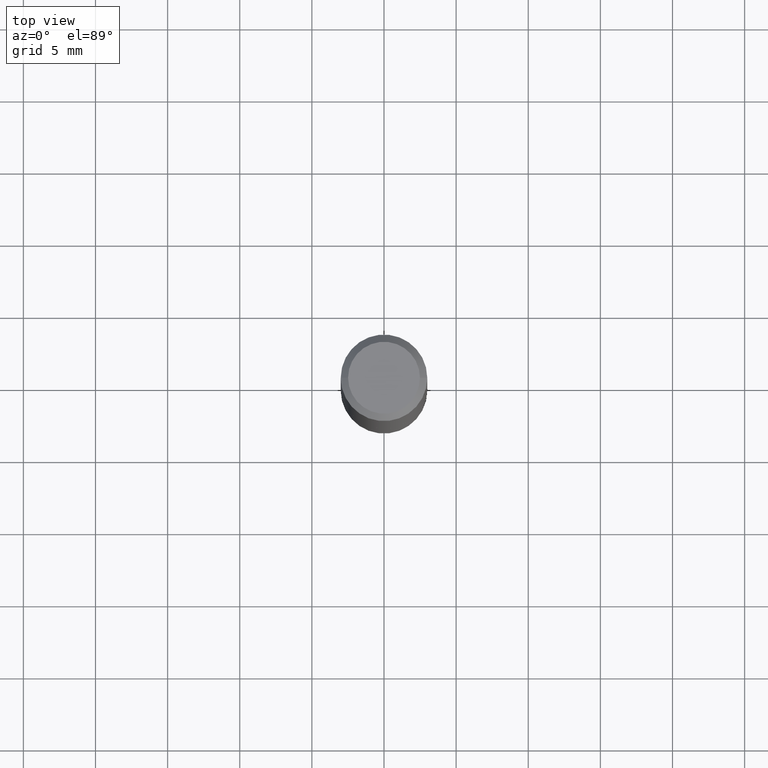
[diagram: clean part render]
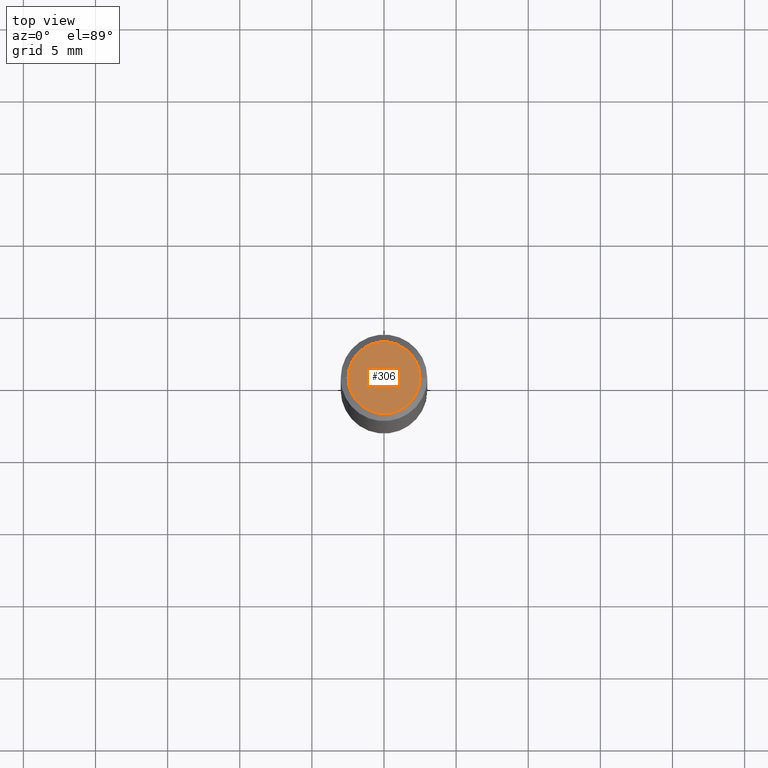
[diagram: same view with one face highlighted and labeled with its STEP entity id]
A machine part, top view. The second image highlights one B-rep face of the part: STEP entity #306.
In plain terms, the highlighted planar face has unit normal (0, -0, -1).
Its self-contained STEP definition (entity closure, byte-faithful):
#23 = FACE_OUTER_BOUND ( 'NONE', #259, .T. ) ;
#54 = DIRECTION ( 'NONE',  ( 1.000000000000000000, -6.982962677686266711E-15, 4.876195163481339890E-29 ) ) ;
#110 = DIRECTION ( 'NONE',  ( 2.438088387897960049E-29, -3.491481338843145188E-15, -1.000000000000000000 ) ) ;
#111 = CARTESIAN_POINT ( 'NONE',  ( -0.09809999999999984011, 7.199434520694527237E-16, 4.268512490095498617E-18 ) ) ;
#151 = CIRCLE ( 'NONE', #279, 0.09809999999999984011 ) ;
#165 = CIRCLE ( 'NONE', #330, 0.09809999999999984011 ) ;
#167 = DIRECTION ( 'NONE',  ( -1.000000000000000000, 6.982962677686265922E-15, -4.876176775795935793E-29 ) ) ;
#170 = DIRECTION ( 'NONE',  ( 1.000000000000000000, -6.982962677686266711E-15, 4.876195163481339890E-29 ) ) ;
#184 = AXIS2_PLACEMENT_3D ( 'NONE', #190, #110, #167 ) ;
#190 = CARTESIAN_POINT ( 'NONE',  ( 6.850286386810215676E-16, 0.09809999999999984011, -3.403800630954618031E-16 ) ) ;
#214 = CARTESIAN_POINT ( 'NONE',  ( 0.09809999999999984011, -7.765346469475328709E-16, 4.268512490105521927E-18 ) ) ;
#228 = EDGE_CURVE ( 'NONE', #311, #365, #165, .T. ) ;
#252 = CARTESIAN_POINT ( 'NONE',  ( -1.043851414335219820E-46, 1.490343170380447200E-32, 4.268512490100411279E-18 ) ) ;
#257 = ORIENTED_EDGE ( 'NONE', *, *, #327, .T. ) ;
#259 = EDGE_LOOP ( 'NONE', ( #325, #257 ) ) ;
#279 = AXIS2_PLACEMENT_3D ( 'NONE', #252, #359, #170 ) ;
#306 = ADVANCED_FACE ( 'NONE', ( #23 ), #331, .F. ) ;
#311 = VERTEX_POINT ( 'NONE', #111 ) ;
#325 = ORIENTED_EDGE ( 'NONE', *, *, #228, .T. ) ;
#327 = EDGE_CURVE ( 'NONE', #365, #311, #151, .T. ) ;
#330 = AXIS2_PLACEMENT_3D ( 'NONE', #333, #361, #54 ) ;
#331 = PLANE ( 'NONE',  #184 ) ;
#333 = CARTESIAN_POINT ( 'NONE',  ( -1.043851414335219820E-46, 1.490343170380447200E-32, 4.268512490100411279E-18 ) ) ;
#359 = DIRECTION ( 'NONE',  ( -2.445468806185136597E-29, 3.491481338843145583E-15, 1.000000000000000000 ) ) ;
#361 = DIRECTION ( 'NONE',  ( -2.445468806185136597E-29, 3.491481338843145583E-15, 1.000000000000000000 ) ) ;
#365 = VERTEX_POINT ( 'NONE', #214 ) ;